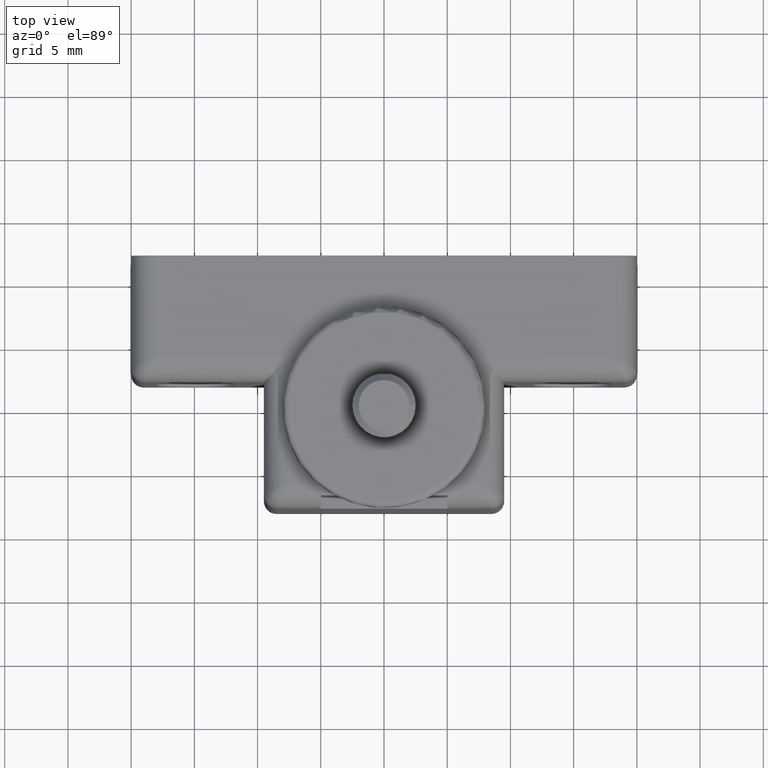
[diagram: clean part render]
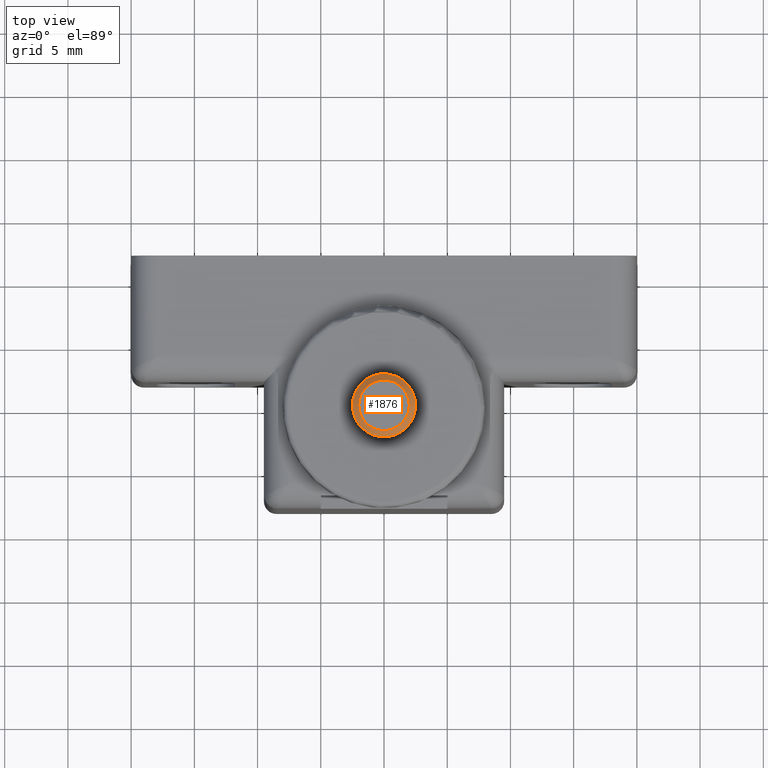
[diagram: same view with one face highlighted and labeled with its STEP entity id]
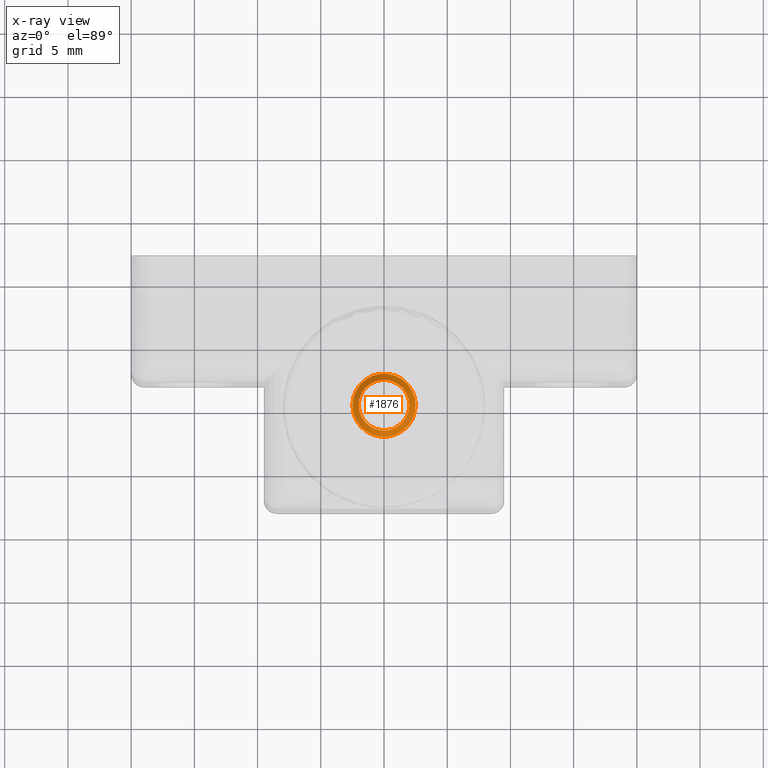
[diagram: x-ray of the same camera — body ghosted, the highlighted face saturated]
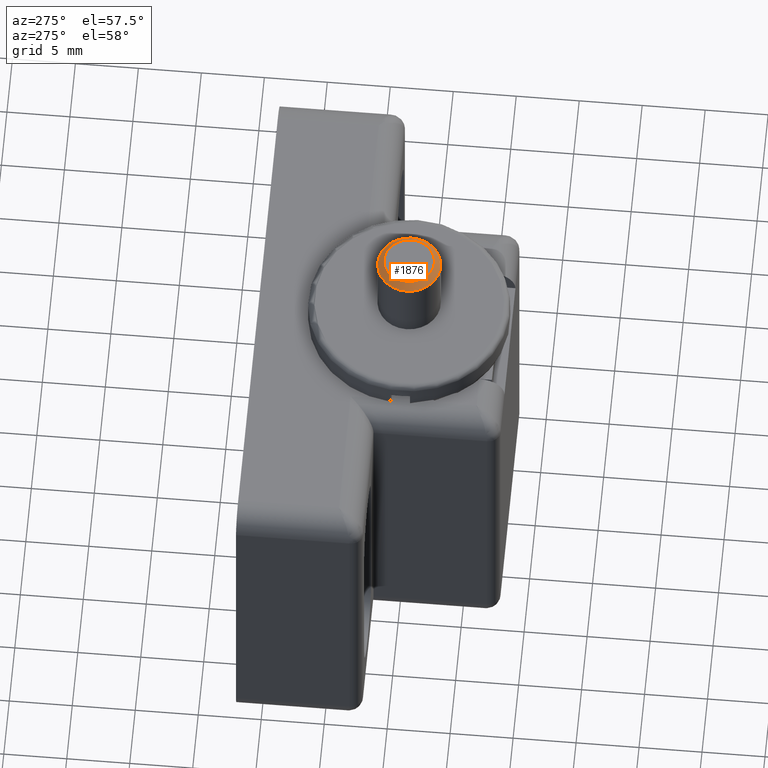
[diagram: same view with one face highlighted and labeled with its STEP entity id]
A machine part, top view. The second image highlights one B-rep face of the part: STEP entity #1876.
The next image is the same camera in x-ray: the body ghosted, the highlighted face saturated — about 0% of this face is hidden behind the body in this view.
A second angle (auxiliary view) of the same face is appended — the face is thin or edge-on in the first view.
In plain terms, the highlighted conical surface has half-angle 45 deg.
Its self-contained STEP definition (entity closure, byte-faithful):
#98=FACE_BOUND('',#281,.T.);
#111=CONICAL_SURFACE('',#2005,2.25,44.9999999999999);
#121=CIRCLE('',#2006,2.5);
#122=CIRCLE('',#2007,2.);
#165=FACE_OUTER_BOUND('',#280,.T.);
#280=EDGE_LOOP('',(#1285));
#281=EDGE_LOOP('',(#1286));
#825=VERTEX_POINT('',#2784);
#826=VERTEX_POINT('',#2786);
#1000=EDGE_CURVE('',#825,#825,#121,.T.);
#1001=EDGE_CURVE('',#826,#826,#122,.T.);
#1285=ORIENTED_EDGE('',*,*,#1000,.T.);
#1286=ORIENTED_EDGE('',*,*,#1001,.T.);
#1876=ADVANCED_FACE('',(#165,#98),#111,.T.);
#2005=AXIS2_PLACEMENT_3D('',#2783,#2201,#2202);
#2006=AXIS2_PLACEMENT_3D('',#2785,#2203,#2204);
#2007=AXIS2_PLACEMENT_3D('',#2787,#2205,#2206);
#2201=DIRECTION('center_axis',(0.,0.,-1.));
#2202=DIRECTION('ref_axis',(-1.,0.,0.));
#2203=DIRECTION('center_axis',(0.,0.,1.));
#2204=DIRECTION('ref_axis',(-1.,0.,0.));
#2205=DIRECTION('center_axis',(0.,0.,-1.));
#2206=DIRECTION('ref_axis',(-1.,0.,0.));
#2783=CARTESIAN_POINT('Origin',(0.,0.,8.45));
#2784=CARTESIAN_POINT('',(2.5,3.06161699786838E-016,8.2));
#2785=CARTESIAN_POINT('Origin',(0.,0.,8.2));
#2786=CARTESIAN_POINT('',(2.,-2.44929359829471E-016,8.7));
#2787=CARTESIAN_POINT('Origin',(0.,0.,8.7));